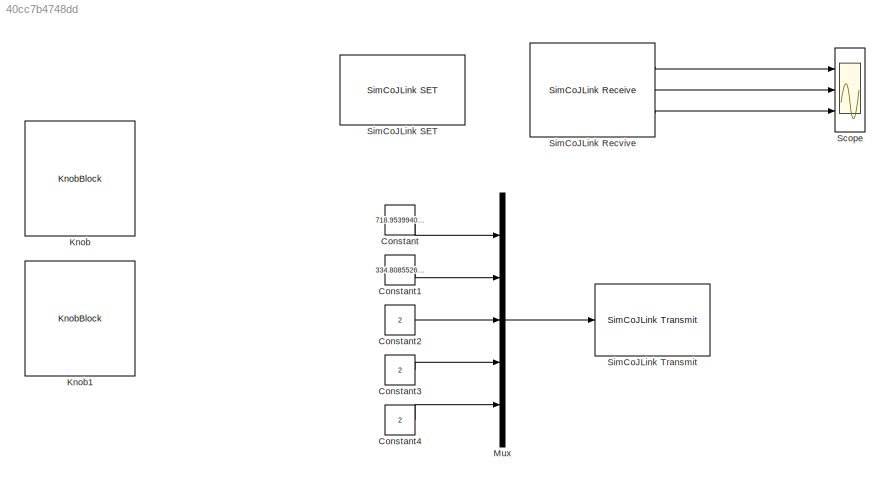
MODEL slx_40cc7b4748dd
KIND model
CONFIG AbsTol = auto
CONFIG EnableMultiTasking = off
CONFIG FixedStep = auto
CONFIG MaxStep = auto
CONFIG MinStep = auto
CONFIG RelTol = 1e-3
CONFIG SampleTimeConstraint = Unconstrained
CONFIG SolverName = FixedStepDiscrete
CONFIG StartTime = 0.0
CONFIG StopTime = inf
BLOCK [Constant] Constant
  OutDataTypeStr = uint16
  SampleTime = 0.1
  Value = 718.9539940619493
BLOCK [Constant] Constant1
  OutDataTypeStr = uint16
  SampleTime = 0.1
  Value = 334.8085526416183
BLOCK [Constant] Constant2
  OutDataTypeStr = uint16
  SampleTime = 0.1
  Value = 2
BLOCK [Constant] Constant3
  OutDataTypeStr = uint16
  SampleTime = 0.1
  Value = 2
BLOCK [Constant] Constant4
  OutDataTypeStr = uint16
  SampleTime = 0.1
  Value = 2
BLOCK [KnobBlock] Knob
  ScaleMax = 4000
  ScaleMin = 100
BLOCK [KnobBlock] Knob1
  ScaleMax = 2000
  ScaleMin = 100
BLOCK [Mux] Mux
  DisplayOption = bar
  Inputs = 5
  Ports = [5, 1]
BLOCK [Scope] Scope
  Floating = off
  NumInputPorts = 3
  Ports = [3]
  ScopeSpecificationString = Simulink.scopes.TimeScopeBlockCfg('CurrentConfiguration', extmgr.ConfigurationSet(extmgr.Configuration('Core','General UI',true),extmgr.Configuration('Core','Source UI',true),extmgr.Configuration('Sources','WiredSimulink',true,'DataLoggingLimitDataPoints',true,'DataLoggingMaxPoints','2000'),extmgr.Configuration('Visuals','Time Domain',true,'InputProcessing','FrameProcessing','SerializedDisplays',{...<+2913ch>
BLOCK [Reference] SimCoJLink Recvive  REF=SimCoJLink/SimCoJLink Receive
  Ports = [0, 3]
  SourceBlock = SimCoJLink/SimCoJLink Receive
BLOCK [Reference] SimCoJLink SET  REF=SimCoJLink/SimCoJLink SET
  Ports = []
  SourceBlock = SimCoJLink/SimCoJLink SET
BLOCK [Reference] SimCoJLink Transmit  REF=SimCoJLink/SimCoJLink Transmit
  Ports = [1]
  SourceBlock = SimCoJLink/SimCoJLink Transmit
LINE Constant1:1 -> Mux:2
LINE Constant2:1 -> Mux:3
LINE Constant3:1 -> Mux:4
LINE Constant4:1 -> Mux:5
LINE Constant:1 -> Mux:1
LINE Mux:1 -> SimCoJLink Transmit:1
LINE SimCoJLink Recvive:1 -> Scope:1
LINE SimCoJLink Recvive:2 -> Scope:2
LINE SimCoJLink Recvive:3 -> Scope:3
